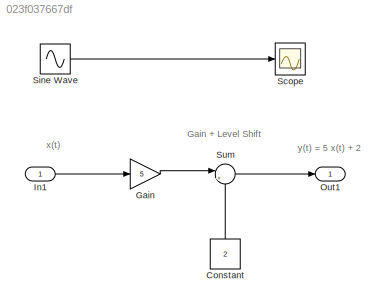
MODEL slx_023f037667df
KIND model
BLOCK [Constant] Constant
  Value = 2
BLOCK [Gain] Gain
  Gain = 5
  OutDataTypeStr = Inherit: Inherit via internal rule
  ParamDataTypeStr = Inherit: Inherit via internal rule
  SaturateOnIntegerOverflow = off
BLOCK [Inport] In1
  IconDisplay = Port number
BLOCK [Outport] Out1
  IconDisplay = Port number
BLOCK [Scope] Scope
  DataFormat = StructureWithTime
  Floating = off
  NumInputPorts = 1
  Ports = [1]
  SampleTime = 0
  ShowLegends = off
BLOCK [Sin] Sine Wave
  Amplitude = 3
  Frequency = 4*pi
  Phase = -3*pi/4
  Ports = [0, 1]
  SampleTime = 0
BLOCK [Sum] Sum
  IconShape = round
  InputSameDT = off
  Inputs = |++
  OutDataTypeStr = Inherit: Inherit via internal rule
  Ports = [2, 1]
  SaturateOnIntegerOverflow = off
ANNOTATION (root): Gain + Level Shift
ANNOTATION (root): x(t)
ANNOTATION (root): y(t) = 5 x(t) + 2
LINE Constant:1 -> Sum:2
LINE Gain:1 -> Sum:1
LINE In1:1 -> Gain:1
LINE Sine Wave:1 -> Scope:1
LINE Sum:1 -> Out1:1
